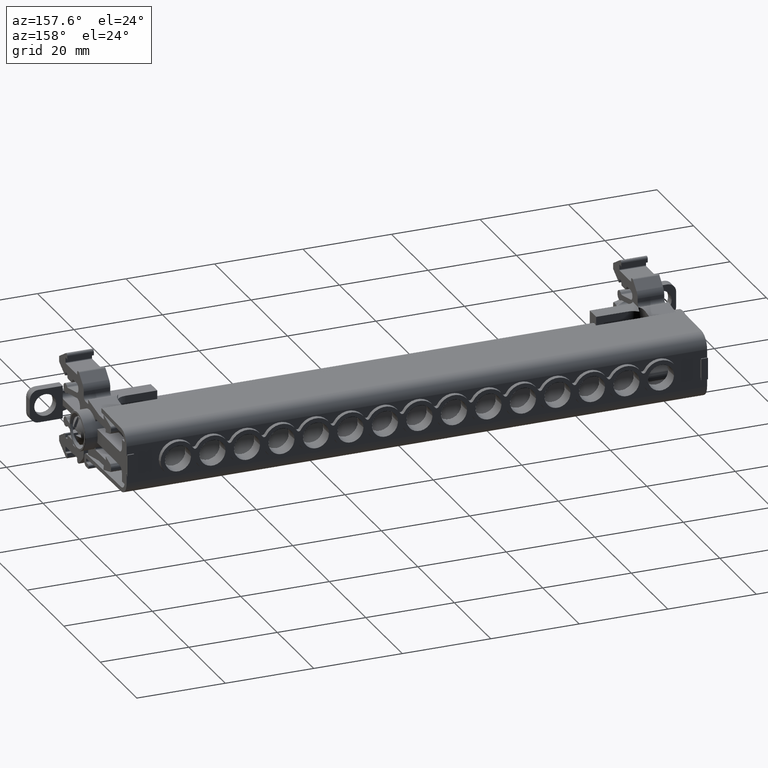
[diagram: clean part render]
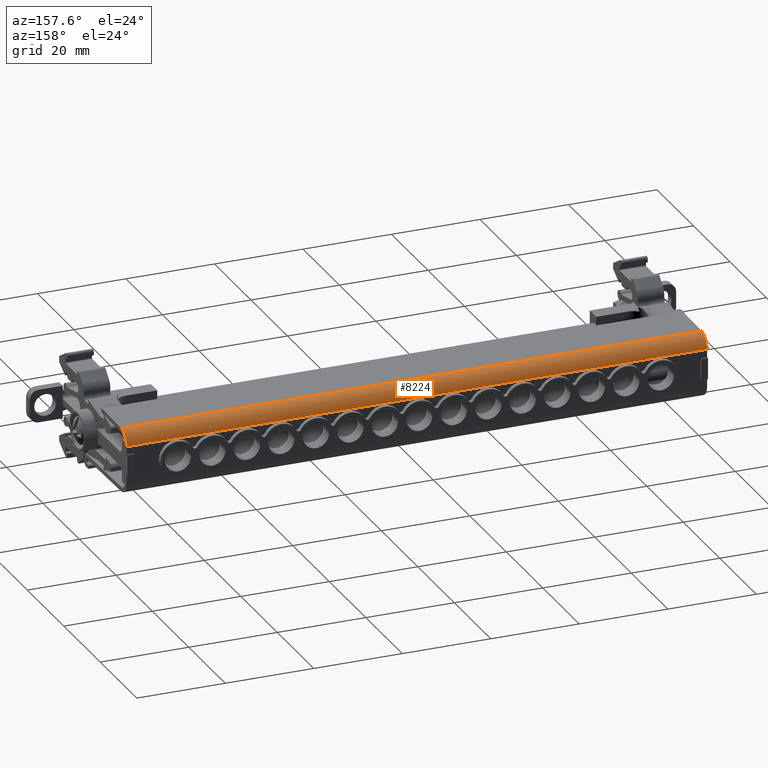
[diagram: same view with one face highlighted and labeled with its STEP entity id]
A machine part, auxiliary view. The second image highlights one B-rep face of the part: STEP entity #8224.
In plain terms, the highlighted cylindrical surface (edge-blend (fillet) strip) has radius 2.9989 mm, axis along (1, 0, 0).
Its self-contained STEP definition (entity closure, byte-faithful):
#5477 = AXIS2_PLACEMENT_3D ( 'NONE', #8842, #8857, #8847 ) ;
#7505 = EDGE_CURVE ( 'NONE', #33088, #33145, #20376, .T. ) ;
#7512 = EDGE_CURVE ( 'NONE', #33088, #33006, #11733, .T. ) ;
#7702 = EDGE_CURVE ( 'NONE', #33145, #32947, #10880, .T. ) ;
#8224 = ADVANCED_FACE ( 'NONE', ( #8854 ), #8841, .T. ) ;
#8841 = CYLINDRICAL_SURFACE ( 'NONE', #5477, 2.998863636113957600 ) ;
#8842 = CARTESIAN_POINT ( 'NONE',  ( 10.90789896013840200, -24.79683233985553400, 100.2185217576096200 ) ) ;
#8847 = DIRECTION ( 'NONE',  ( -2.313841089786567700E-015, 1.619688762850597300E-014, 1.000000000000000000 ) ) ;
#8854 = FACE_OUTER_BOUND ( 'NONE', #28178, .T. ) ;
#8857 = DIRECTION ( 'NONE',  ( 1.000000000000000000, 1.123605221868000100E-014, 2.470852055923969000E-015 ) ) ;
#10880 = CIRCLE ( 'NONE', #10883, 2.998863636113957600 ) ;
#10883 = AXIS2_PLACEMENT_3D ( 'NONE', #29193, #29176, #29164 ) ;
#11725 = AXIS2_PLACEMENT_3D ( 'NONE', #20430, #20437, #20421 ) ;
#11733 = CIRCLE ( 'NONE', #11725, 2.998863636113954000 ) ;
#11754 = VECTOR ( 'NONE', #20412, 1000.000000000000000 ) ;
#14249 = EDGE_CURVE ( 'NONE', #33006, #32947, #19401, .T. ) ;
#17982 = VECTOR ( 'NONE', #19429, 1000.000000000000000 ) ;
#19401 = LINE ( 'NONE', #19406, #17982 ) ;
#19406 = CARTESIAN_POINT ( 'NONE',  ( -82.65664649360100200, -21.79796870374104900, 100.2185217576091200 ) ) ;
#19429 = DIRECTION ( 'NONE',  ( 1.000000000000000000, 1.123605221868000100E-014, 2.470852055923969000E-015 ) ) ;
#20376 = LINE ( 'NONE', #20450, #11754 ) ;
#20412 = DIRECTION ( 'NONE',  ( 1.000000000000000000, 1.123605221868000100E-014, 2.470852055923969000E-015 ) ) ;
#20421 = DIRECTION ( 'NONE',  ( -9.255364359146281900E-015, 1.000000000000000000, 0.0000000000000000000 ) ) ;
#20430 = CARTESIAN_POINT ( 'NONE',  ( -82.60658967541785100, -24.79683233985658600, 100.2185217576093800 ) ) ;
#20437 = DIRECTION ( 'NONE',  ( -1.000000000000000000, -1.123605221868000100E-014, -2.470852055923969000E-015 ) ) ;
#20450 = CARTESIAN_POINT ( 'NONE',  ( 10.90789896013847800, -24.74449495282805600, 103.2169286522665300 ) ) ;
#21518 = ORIENTED_EDGE ( 'NONE', *, *, #7512, .F. ) ;
#21623 = ORIENTED_EDGE ( 'NONE', *, *, #14249, .F. ) ;
#21665 = ORIENTED_EDGE ( 'NONE', *, *, #7505, .T. ) ;
#21699 = ORIENTED_EDGE ( 'NONE', *, *, #7702, .T. ) ;
#26923 = CARTESIAN_POINT ( 'NONE',  ( 48.59443305074136500, -21.79796870373957400, 100.2185217576094400 ) ) ;
#27024 = CARTESIAN_POINT ( 'NONE',  ( -82.60658967541787900, -21.79796870374104900, 100.2185217576091200 ) ) ;
#27149 = CARTESIAN_POINT ( 'NONE',  ( 48.59443305074135100, -24.74449495282763300, 103.2169286522666300 ) ) ;
#27167 = CARTESIAN_POINT ( 'NONE',  ( -82.60658967541785100, -24.74449495282910800, 103.2169286522662900 ) ) ;
#28178 = EDGE_LOOP ( 'NONE', ( #21665, #21699, #21623, #21518 ) ) ;
#29164 = DIRECTION ( 'NONE',  ( -1.619688762850597300E-014, 0.0000000000000000000, 1.000000000000000000 ) ) ;
#29176 = DIRECTION ( 'NONE',  ( -1.000000000000000000, -1.123605221868026300E-014, -1.643677741129682900E-014 ) ) ;
#29193 = CARTESIAN_POINT ( 'NONE',  ( 48.59443305074140100, -24.79683233985511100, 100.2185217576097200 ) ) ;
#32947 = VERTEX_POINT ( 'NONE', #26923 ) ;
#33006 = VERTEX_POINT ( 'NONE', #27024 ) ;
#33088 = VERTEX_POINT ( 'NONE', #27167 ) ;
#33145 = VERTEX_POINT ( 'NONE', #27149 ) ;